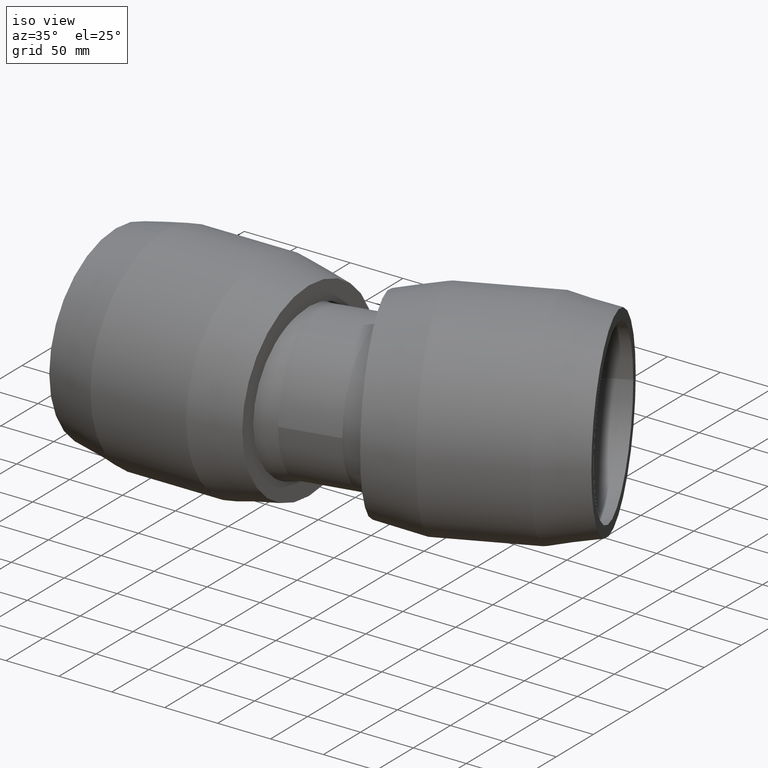
[diagram: clean part render]
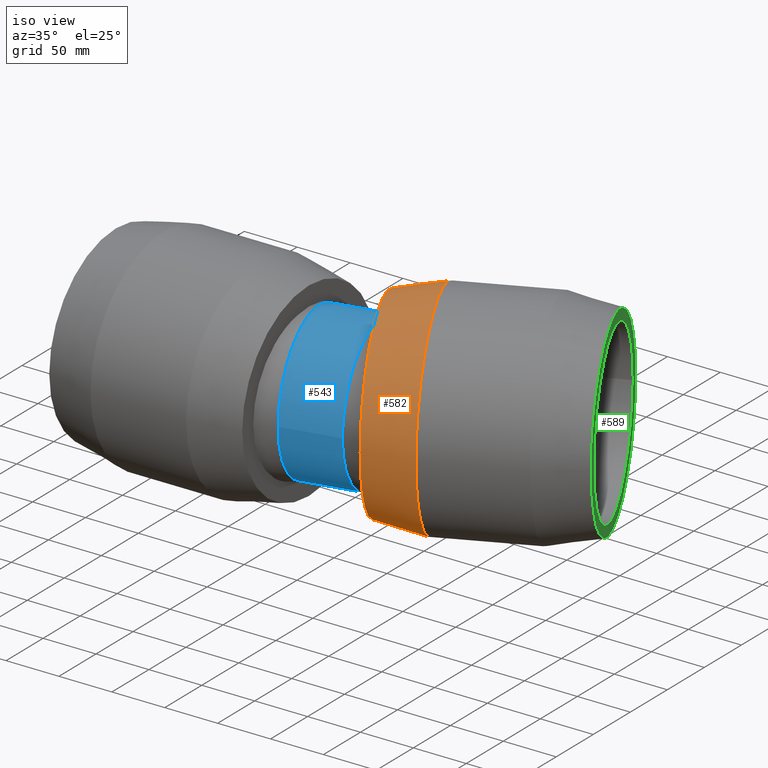
[diagram: same view with three faces highlighted in distinct colors, each labeled with its STEP entity id]
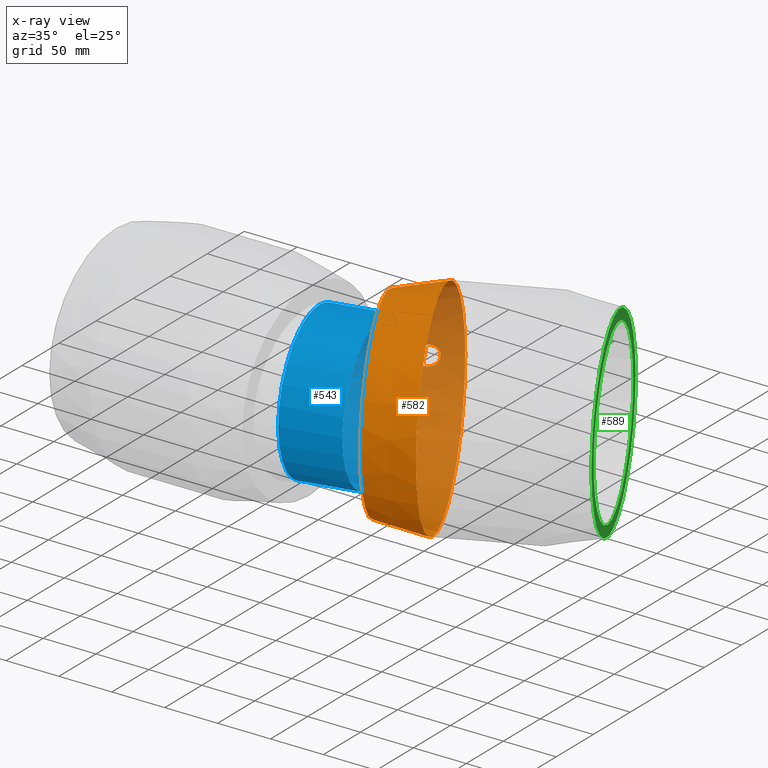
[diagram: x-ray of the same camera — body ghosted, the three highlighted faces saturated]
A machine part, iso view with three faces highlighted in distinct colors.
The next image is the same camera in x-ray (body ghosted, the three faces saturated) — at least one of them is partly hidden behind the body in this view.
Their STEP definitions:

[orange] entity #582 — the highlighted conical surface has half-angle 12.265 deg.
#22=CONICAL_SURFACE('',#675,95.,12.2647737278924);
#102=FACE_BOUND('',#244,.T.);
#103=FACE_BOUND('',#245,.T.);
#154=FACE_OUTER_BOUND('',#243,.T.);
#243=EDGE_LOOP('',(#518));
#244=EDGE_LOOP('',(#519));
#245=EDGE_LOOP('',(#520));
#269=B_SPLINE_CURVE_WITH_KNOTS('',3,(#1276,#1277,#1278,#1279,#1280,#1281,
#1282,#1283,#1284,#1285,#1286,#1287,#1288,#1289,#1290,#1291,#1292,#1293,
#1294,#1295,#1296,#1297,#1298,#1299,#1300,#1301,#1302,#1303,#1304,#1305,
#1306,#1307,#1308,#1309),.UNSPECIFIED.,.T.,.F.,(4,2,2,2,2,2,2,2,2,2,2,2,
2,2,2,2,4),(0.,0.348557454254231,0.697114908508462,1.04261778403275,1.38812065955704,
1.73362353508133,2.07912641060562,2.42768386485985,2.77624131911408,3.14197820508099,
3.5077150910479,3.86283908465778,4.21796307826767,4.57308707187755,4.92821106548743,
5.29394795145434,5.65968483742126),.UNSPECIFIED.);
#310=CIRCLE('',#673,100.);
#312=CIRCLE('',#676,90.);
#359=VERTEX_POINT('',#1275);
#362=VERTEX_POINT('',#1351);
#364=VERTEX_POINT('',#1356);
#415=EDGE_CURVE('',#359,#359,#269,.T.);
#418=EDGE_CURVE('',#362,#362,#310,.T.);
#420=EDGE_CURVE('',#364,#364,#312,.T.);
#518=ORIENTED_EDGE('',*,*,#420,.T.);
#519=ORIENTED_EDGE('',*,*,#415,.T.);
#520=ORIENTED_EDGE('',*,*,#418,.F.);
#582=ADVANCED_FACE('',(#154,#102,#103),#22,.T.);
#673=AXIS2_PLACEMENT_3D('',#1352,#853,#854);
#675=AXIS2_PLACEMENT_3D('',#1355,#857,#858);
#676=AXIS2_PLACEMENT_3D('',#1357,#859,#860);
#853=DIRECTION('center_axis',(0.913545457642601,0.4067366430758,1.19788532833232E-16));
#854=DIRECTION('ref_axis',(1.19788532833232E-16,2.54618386665284E-17,-1.));
#857=DIRECTION('center_axis',(0.913545457642601,0.4067366430758,1.19788532833232E-16));
#858=DIRECTION('ref_axis',(-0.4067366430758,0.913545457642601,-2.54618386665283E-17));
#859=DIRECTION('center_axis',(0.913545457642601,0.4067366430758,1.19788532833232E-16));
#860=DIRECTION('ref_axis',(1.19788532833232E-16,2.54618386665284E-17,-1.));
#1275=CARTESIAN_POINT('',(129.919582882081,105.449668237392,9.29269963367691));
#1276=CARTESIAN_POINT('Ctrl Pts',(129.919582882081,105.449668237392,9.29269963367692));
#1277=CARTESIAN_POINT('Ctrl Pts',(128.982292825401,104.763515948112,9.2682697755975));
#1278=CARTESIAN_POINT('Ctrl Pts',(127.970660404152,104.050888935427,9.0191240299867));
#1279=CARTESIAN_POINT('Ctrl Pts',(126.089684907579,102.776543722886,8.05010046060632));
#1280=CARTESIAN_POINT('Ctrl Pts',(125.221082950552,102.21394964408,7.32993626237674));
#1281=CARTESIAN_POINT('Ctrl Pts',(123.84862747483,101.346815835667,5.68163820186943));
#1282=CARTESIAN_POINT('Ctrl Pts',(123.250722481868,100.982343541456,4.6460061857942));
#1283=CARTESIAN_POINT('Ctrl Pts',(122.455920840924,100.503916638571,2.38099312724508));
#1284=CARTESIAN_POINT('Ctrl Pts',(122.259541447371,100.388799787378,1.15167625174763));
#1285=CARTESIAN_POINT('Ctrl Pts',(122.259541447371,100.388799787378,-1.15167625174762));
#1286=CARTESIAN_POINT('Ctrl Pts',(122.455920840924,100.503916638571,-2.38099312724508));
#1287=CARTESIAN_POINT('Ctrl Pts',(123.250722481868,100.982343541456,-4.6460061857942));
#1288=CARTESIAN_POINT('Ctrl Pts',(123.84862747483,101.346815835667,-5.68163820186942));
#1289=CARTESIAN_POINT('Ctrl Pts',(125.221082950552,102.21394964408,-7.32993626237673));
#1290=CARTESIAN_POINT('Ctrl Pts',(126.089684907579,102.776543722886,-8.05010046060632));
#1291=CARTESIAN_POINT('Ctrl Pts',(127.970660404152,104.050888935427,-9.01912402998669));
#1292=CARTESIAN_POINT('Ctrl Pts',(128.982292825401,104.763515948112,-9.26826977559749));
#1293=CARTESIAN_POINT('Ctrl Pts',(130.903069370159,106.169639072954,-9.31833357181116));
#1294=CARTESIAN_POINT('Ctrl Pts',(131.940908232878,106.960049586669,-9.10108109765111));
#1295=CARTESIAN_POINT('Ctrl Pts',(133.834685981991,108.455964377758,-8.16378227530743));
#1296=CARTESIAN_POINT('Ctrl Pts',(134.691453246451,109.160486837713,-7.44384311190734));
#1297=CARTESIAN_POINT('Ctrl Pts',(136.021355882521,110.276901101723,-5.78289143364722));
#1298=CARTESIAN_POINT('Ctrl Pts',(136.590531702834,110.768441223778,-4.74042645833308));
#1299=CARTESIAN_POINT('Ctrl Pts',(137.347002323854,111.428129673486,-2.44101081803661));
#1300=CARTESIAN_POINT('Ctrl Pts',(137.53451688615,111.594932491888,-1.18374664536627));
#1301=CARTESIAN_POINT('Ctrl Pts',(137.53451688615,111.594932491888,1.18374664536628));
#1302=CARTESIAN_POINT('Ctrl Pts',(137.347002323854,111.428129673486,2.4410108180366));
#1303=CARTESIAN_POINT('Ctrl Pts',(136.590531702834,110.768441223778,4.74042645833307));
#1304=CARTESIAN_POINT('Ctrl Pts',(136.021355882521,110.276901101723,5.78289143364722));
#1305=CARTESIAN_POINT('Ctrl Pts',(134.691453246451,109.160486837713,7.44384311190734));
#1306=CARTESIAN_POINT('Ctrl Pts',(133.834685981991,108.455964377758,8.16378227530741));
#1307=CARTESIAN_POINT('Ctrl Pts',(131.940908232878,106.960049586669,9.1010810976511));
#1308=CARTESIAN_POINT('Ctrl Pts',(130.903069370159,106.169639072954,9.31833357181116));
#1309=CARTESIAN_POINT('Ctrl Pts',(129.919582882081,105.449668237392,9.29269963367692));
#1351=CARTESIAN_POINT('',(152.947743327763,122.902489849453,6.74504179546645E-15));
#1352=CARTESIAN_POINT('Origin',(193.621407635343,31.5479440851933,9.29122566211928E-15));
#1355=CARTESIAN_POINT('Origin',(172.609862109563,22.1930012944499,6.53608940695495E-15));
#1356=CARTESIAN_POINT('',(114.992018706961,95.0571496915405,1.48938767180306E-15));
#1357=CARTESIAN_POINT('Origin',(151.598316583783,12.8380585037065,3.78095315179061E-15));

[blue] entity #543 — the highlighted cylindrical surface (bore or boss wall) has radius 70.069 mm, axis along (-0.9781, -0.2079, 0).
#45=CYLINDRICAL_SURFACE('',#601,70.0690188278712);
#65=FACE_BOUND('',#168,.T.);
#115=FACE_OUTER_BOUND('',#167,.T.);
#167=EDGE_LOOP('',(#437));
#168=EDGE_LOOP('',(#438));
#273=CIRCLE('',#596,70.0690188278712);
#276=CIRCLE('',#600,70.0690188278712);
#322=VERTEX_POINT('',#997);
#326=VERTEX_POINT('',#1106);
#375=EDGE_CURVE('',#322,#322,#273,.T.);
#380=EDGE_CURVE('',#326,#326,#276,.T.);
#437=ORIENTED_EDGE('',*,*,#380,.F.);
#438=ORIENTED_EDGE('',*,*,#375,.T.);
#543=ADVANCED_FACE('',(#115,#65),#45,.T.);
#596=AXIS2_PLACEMENT_3D('',#998,#699,#700);
#600=AXIS2_PLACEMENT_3D('',#1107,#707,#708);
#601=AXIS2_PLACEMENT_3D('',#1108,#709,#710);
#699=DIRECTION('center_axis',(-0.978147600733806,-0.20791169081776,0.));
#700=DIRECTION('ref_axis',(0.20791169081776,-0.978147600733806,0.));
#707=DIRECTION('center_axis',(-0.978147600733806,-0.20791169081776,0.));
#708=DIRECTION('ref_axis',(0.20791169081776,-0.978147600733806,0.));
#709=DIRECTION('center_axis',(-0.978147600733806,-0.20791169081776,0.));
#710=DIRECTION('ref_axis',(0.20791169081776,-0.978147600733806,0.));
#997=CARTESIAN_POINT('',(162.393667905939,-56.501721127331,0.));
#998=CARTESIAN_POINT('Origin',(147.825499727495,12.0361215249231,0.));
#1106=CARTESIAN_POINT('',(109.540985034733,-67.7359056734706,0.));
#1107=CARTESIAN_POINT('Origin',(94.9728168562887,0.801936978783471,0.));
#1108=CARTESIAN_POINT('Origin',(134.612329009693,9.22757538838819,0.));

[green] entity #589 — the highlighted planar face has unit normal (-0.9135, -0.4067, -0).
#44=PLANE('',#688);
#110=FACE_BOUND('',#259,.T.);
#161=FACE_OUTER_BOUND('',#258,.T.);
#258=EDGE_LOOP('',(#534));
#259=EDGE_LOOP('',(#535));
#317=CIRCLE('',#687,80.);
#318=CIRCLE('',#689,90.);
#369=VERTEX_POINT('',#1372);
#370=VERTEX_POINT('',#1375);
#425=EDGE_CURVE('',#369,#369,#317,.T.);
#426=EDGE_CURVE('',#370,#370,#318,.T.);
#534=ORIENTED_EDGE('',*,*,#426,.T.);
#535=ORIENTED_EDGE('',*,*,#425,.F.);
#589=ADVANCED_FACE('',(#161,#110),#44,.F.);
#687=AXIS2_PLACEMENT_3D('',#1373,#881,#882);
#688=AXIS2_PLACEMENT_3D('',#1374,#883,#884);
#689=AXIS2_PLACEMENT_3D('',#1376,#885,#886);
#881=DIRECTION('center_axis',(0.913545457642601,0.4067366430758,1.19788532833232E-16));
#882=DIRECTION('ref_axis',(1.19788532833232E-16,2.54618386665284E-17,-1.));
#883=DIRECTION('center_axis',(-0.913545457642601,-0.4067366430758,-1.19788532833232E-16));
#884=DIRECTION('ref_axis',(0.,0.,1.));
#885=DIRECTION('center_axis',(0.913545457642601,0.4067366430758,1.19788532833232E-16));
#886=DIRECTION('ref_axis',(1.19788532833232E-16,2.54618386665284E-17,-1.));
#1372=CARTESIAN_POINT('',(285.690076611729,160.11045881214,2.35934344472499E-14));
#1373=CARTESIAN_POINT('Origin',(318.229008057793,87.0268222007324,2.56303815405721E-14));
#1374=CARTESIAN_POINT('Origin',(281.622710180971,169.245913388566,2.33388160605846E-14));
#1375=CARTESIAN_POINT('',(281.622710180971,169.245913388566,2.33388160605846E-14));
#1376=CARTESIAN_POINT('Origin',(318.229008057793,87.0268222007324,2.56303815405721E-14));